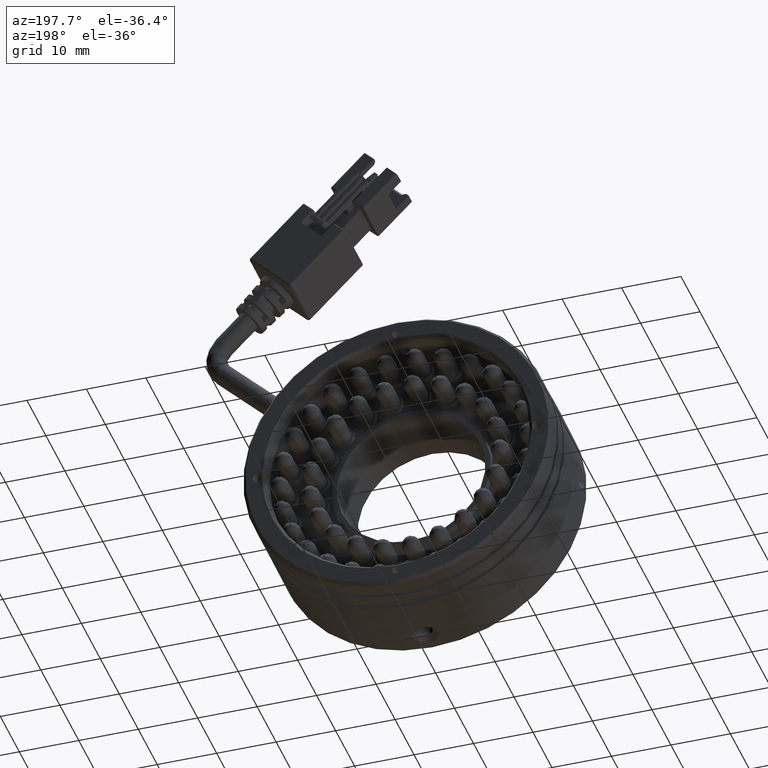
[diagram: clean part render]
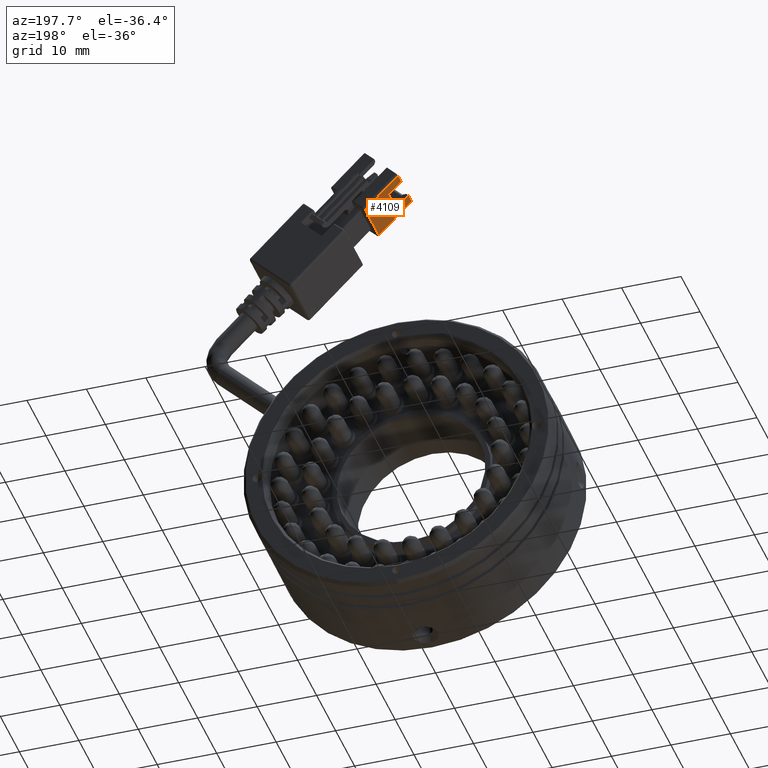
[diagram: same view with one face highlighted and labeled with its STEP entity id]
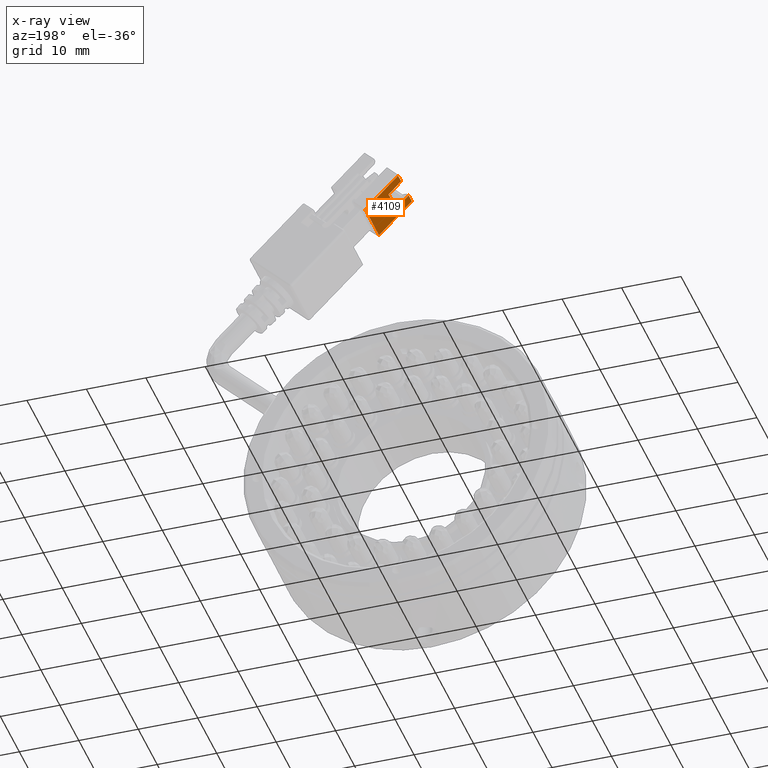
[diagram: x-ray of the same camera — body ghosted, the highlighted face saturated]
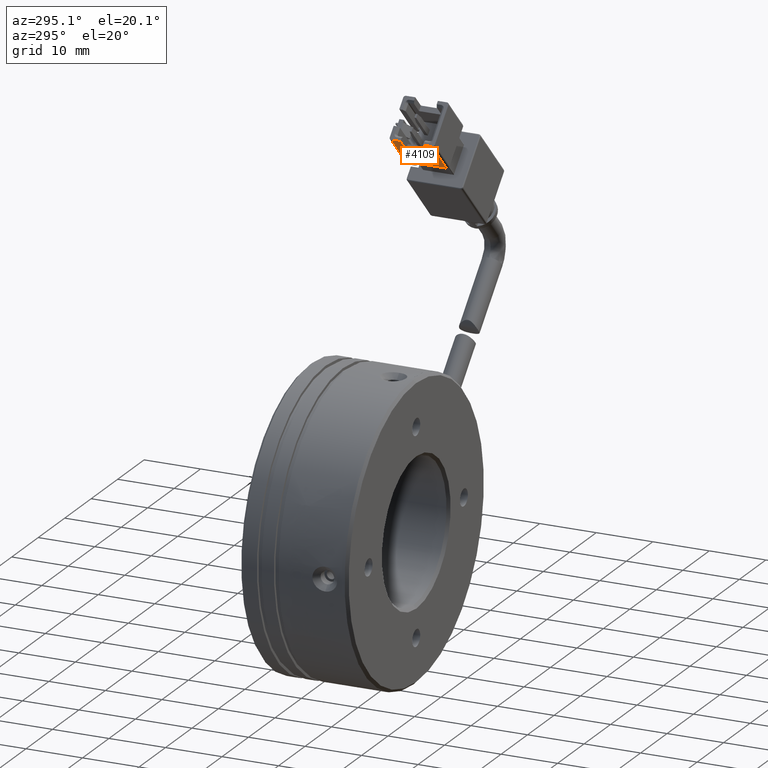
[diagram: same view with one face highlighted and labeled with its STEP entity id]
A machine part, auxiliary view. The second image highlights one B-rep face of the part: STEP entity #4109.
The next image is the same camera in x-ray: the body ghosted, the highlighted face saturated — about 0% of this face is hidden behind the body in this view.
A second angle (auxiliary view) of the same face is appended — the face is thin or edge-on in the first view.
In plain terms, the highlighted planar face has unit normal (0.7071, 0, 0.7071).
Its self-contained STEP definition (entity closure, byte-faithful):
#1304 = VECTOR ( 'NONE', #26244, 1000.000000000000000 ) ;
#1546 = CARTESIAN_POINT ( 'NONE',  ( 5.167171163340100300, -1.369923829761823500, 62.57895013500945700 ) ) ;
#1944 = EDGE_CURVE ( 'NONE', #8227, #12814, #41991, .T. ) ;
#2023 = PLANE ( 'NONE',  #32331 ) ;
#3678 = CARTESIAN_POINT ( 'NONE',  ( 3.045850819780451200, 0.2300761702381773600, 64.70027047856909500 ) ) ;
#4109 = ADVANCED_FACE ( 'NONE', ( #38036 ), #2023, .F. ) ;
#7950 = ORIENTED_EDGE ( 'NONE', *, *, #26987, .F. ) ;
#8036 = VERTEX_POINT ( 'NONE', #32559 ) ;
#8227 = VERTEX_POINT ( 'NONE', #1546 ) ;
#9607 = CARTESIAN_POINT ( 'NONE',  ( 5.167171163340100300, -5.369923829761823700, 62.57895013500945700 ) ) ;
#9999 = LINE ( 'NONE', #15503, #37445 ) ;
#10469 = CARTESIAN_POINT ( 'NONE',  ( 3.045850819780451200, -1.369923829761823500, 64.70027047856909500 ) ) ;
#10653 = ORIENTED_EDGE ( 'NONE', *, *, #36751, .F. ) ;
#11022 = CARTESIAN_POINT ( 'NONE',  ( 3.045850819780451200, -1.369923829761823500, 64.70027047856909500 ) ) ;
#11824 = LINE ( 'NONE', #35004, #32047 ) ;
#12814 = VERTEX_POINT ( 'NONE', #9607 ) ;
#12873 = EDGE_CURVE ( 'NONE', #8036, #30677, #11824, .T. ) ;
#13580 = DIRECTION ( 'NONE',  ( 2.839798023242279500E-016, -1.000000000000000000, 2.263002467479990200E-016 ) ) ;
#13884 = EDGE_CURVE ( 'NONE', #44282, #24278, #9999, .T. ) ;
#13918 = VECTOR ( 'NONE', #37971, 1000.000000000000200 ) ;
#14102 = DIRECTION ( 'NONE',  ( 0.7071067811865495700, 4.078560488377888700E-017, -0.7071067811865454600 ) ) ;
#14571 = VERTEX_POINT ( 'NONE', #44922 ) ;
#15038 = LINE ( 'NONE', #34358, #13918 ) ;
#15503 = CARTESIAN_POINT ( 'NONE',  ( 8.561283713035546600, -7.369923829761823700, 59.18483758531402800 ) ) ;
#17704 = CARTESIAN_POINT ( 'NONE',  ( 8.561283713035543000, -6.969923829761822500, 59.18483758531402800 ) ) ;
#18017 = DIRECTION ( 'NONE',  ( -0.7071067811865495700, -4.078560488377888700E-017, 0.7071067811865454600 ) ) ;
#18544 = LINE ( 'NONE', #45779, #46031 ) ;
#19762 = ORIENTED_EDGE ( 'NONE', *, *, #12873, .F. ) ;
#21231 = ORIENTED_EDGE ( 'NONE', *, *, #13884, .F. ) ;
#22650 = CARTESIAN_POINT ( 'NONE',  ( 3.045850819780451200, -7.369923829761823700, 64.70027047856909500 ) ) ;
#22737 = LINE ( 'NONE', #10469, #31144 ) ;
#23607 = ORIENTED_EDGE ( 'NONE', *, *, #35208, .F. ) ;
#24278 = VERTEX_POINT ( 'NONE', #36961 ) ;
#25137 = VECTOR ( 'NONE', #18017, 1000.000000000000200 ) ;
#25146 = CARTESIAN_POINT ( 'NONE',  ( 5.167171163340100300, -7.369923829761823700, 62.57895013500945700 ) ) ;
#26244 = DIRECTION ( 'NONE',  ( 2.839798023242279500E-016, -1.000000000000000000, 2.263002467479990200E-016 ) ) ;
#26987 = EDGE_CURVE ( 'NONE', #43146, #14571, #39585, .T. ) ;
#27607 = DIRECTION ( 'NONE',  ( 2.839798023242279500E-016, -1.000000000000000000, 2.263002467479990200E-016 ) ) ;
#27818 = ORIENTED_EDGE ( 'NONE', *, *, #44226, .F. ) ;
#29246 = EDGE_LOOP ( 'NONE', ( #21231, #27818, #7950, #37959, #44008, #10653, #19762, #23607 ) ) ;
#29861 = DIRECTION ( 'NONE',  ( -2.839798023242279500E-016, 1.000000000000000000, -2.263002467479990200E-016 ) ) ;
#30677 = VERTEX_POINT ( 'NONE', #11022 ) ;
#31144 = VECTOR ( 'NONE', #14102, 1000.000000000000200 ) ;
#31337 = DIRECTION ( 'NONE',  ( 0.7071067811865495700, 4.078560488377888700E-017, -0.7071067811865454600 ) ) ;
#32047 = VECTOR ( 'NONE', #13580, 1000.000000000000000 ) ;
#32187 = EDGE_CURVE ( 'NONE', #12814, #43146, #15038, .T. ) ;
#32331 = AXIS2_PLACEMENT_3D ( 'NONE', #41317, #40075, #39461 ) ;
#32559 = CARTESIAN_POINT ( 'NONE',  ( 3.045850819780451200, 0.2300761702381773600, 64.70027047856909500 ) ) ;
#33503 = VECTOR ( 'NONE', #27607, 1000.000000000000000 ) ;
#34358 = CARTESIAN_POINT ( 'NONE',  ( 3.045850819780451200, -5.369923829761823700, 64.70027047856909500 ) ) ;
#35004 = CARTESIAN_POINT ( 'NONE',  ( 3.045850819780451200, -7.369923829761823700, 64.70027047856909500 ) ) ;
#35208 = EDGE_CURVE ( 'NONE', #24278, #8036, #44203, .T. ) ;
#36751 = EDGE_CURVE ( 'NONE', #30677, #8227, #22737, .T. ) ;
#36961 = CARTESIAN_POINT ( 'NONE',  ( 8.561283713035539500, 0.2300761702381773600, 59.18483758531402800 ) ) ;
#37445 = VECTOR ( 'NONE', #29861, 1000.000000000000000 ) ;
#37678 = CARTESIAN_POINT ( 'NONE',  ( 3.045850819780451200, -5.369923829761823700, 64.70027047856909500 ) ) ;
#37959 = ORIENTED_EDGE ( 'NONE', *, *, #32187, .F. ) ;
#37971 = DIRECTION ( 'NONE',  ( -0.7071067811865495700, -4.078560488377888700E-017, 0.7071067811865454600 ) ) ;
#38036 = FACE_OUTER_BOUND ( 'NONE', #29246, .T. ) ;
#39461 = DIRECTION ( 'NONE',  ( -2.839798023242279500E-016, 1.000000000000000000, -2.263002467479990200E-016 ) ) ;
#39585 = LINE ( 'NONE', #22650, #1304 ) ;
#40075 = DIRECTION ( 'NONE',  ( 0.7071067811865454600, 3.608224830031757800E-016, 0.7071067811865495700 ) ) ;
#41317 = CARTESIAN_POINT ( 'NONE',  ( 3.045850819780451200, -7.369923829761823700, 64.70027047856909500 ) ) ;
#41991 = LINE ( 'NONE', #25146, #33503 ) ;
#43146 = VERTEX_POINT ( 'NONE', #37678 ) ;
#44008 = ORIENTED_EDGE ( 'NONE', *, *, #1944, .F. ) ;
#44203 = LINE ( 'NONE', #3678, #25137 ) ;
#44226 = EDGE_CURVE ( 'NONE', #14571, #44282, #18544, .T. ) ;
#44282 = VERTEX_POINT ( 'NONE', #17704 ) ;
#44922 = CARTESIAN_POINT ( 'NONE',  ( 3.045850819780451200, -6.969923829761823300, 64.70027047856909500 ) ) ;
#45779 = CARTESIAN_POINT ( 'NONE',  ( 3.045850819780451200, -6.969923829761823300, 64.70027047856909500 ) ) ;
#46031 = VECTOR ( 'NONE', #31337, 1000.000000000000200 ) ;